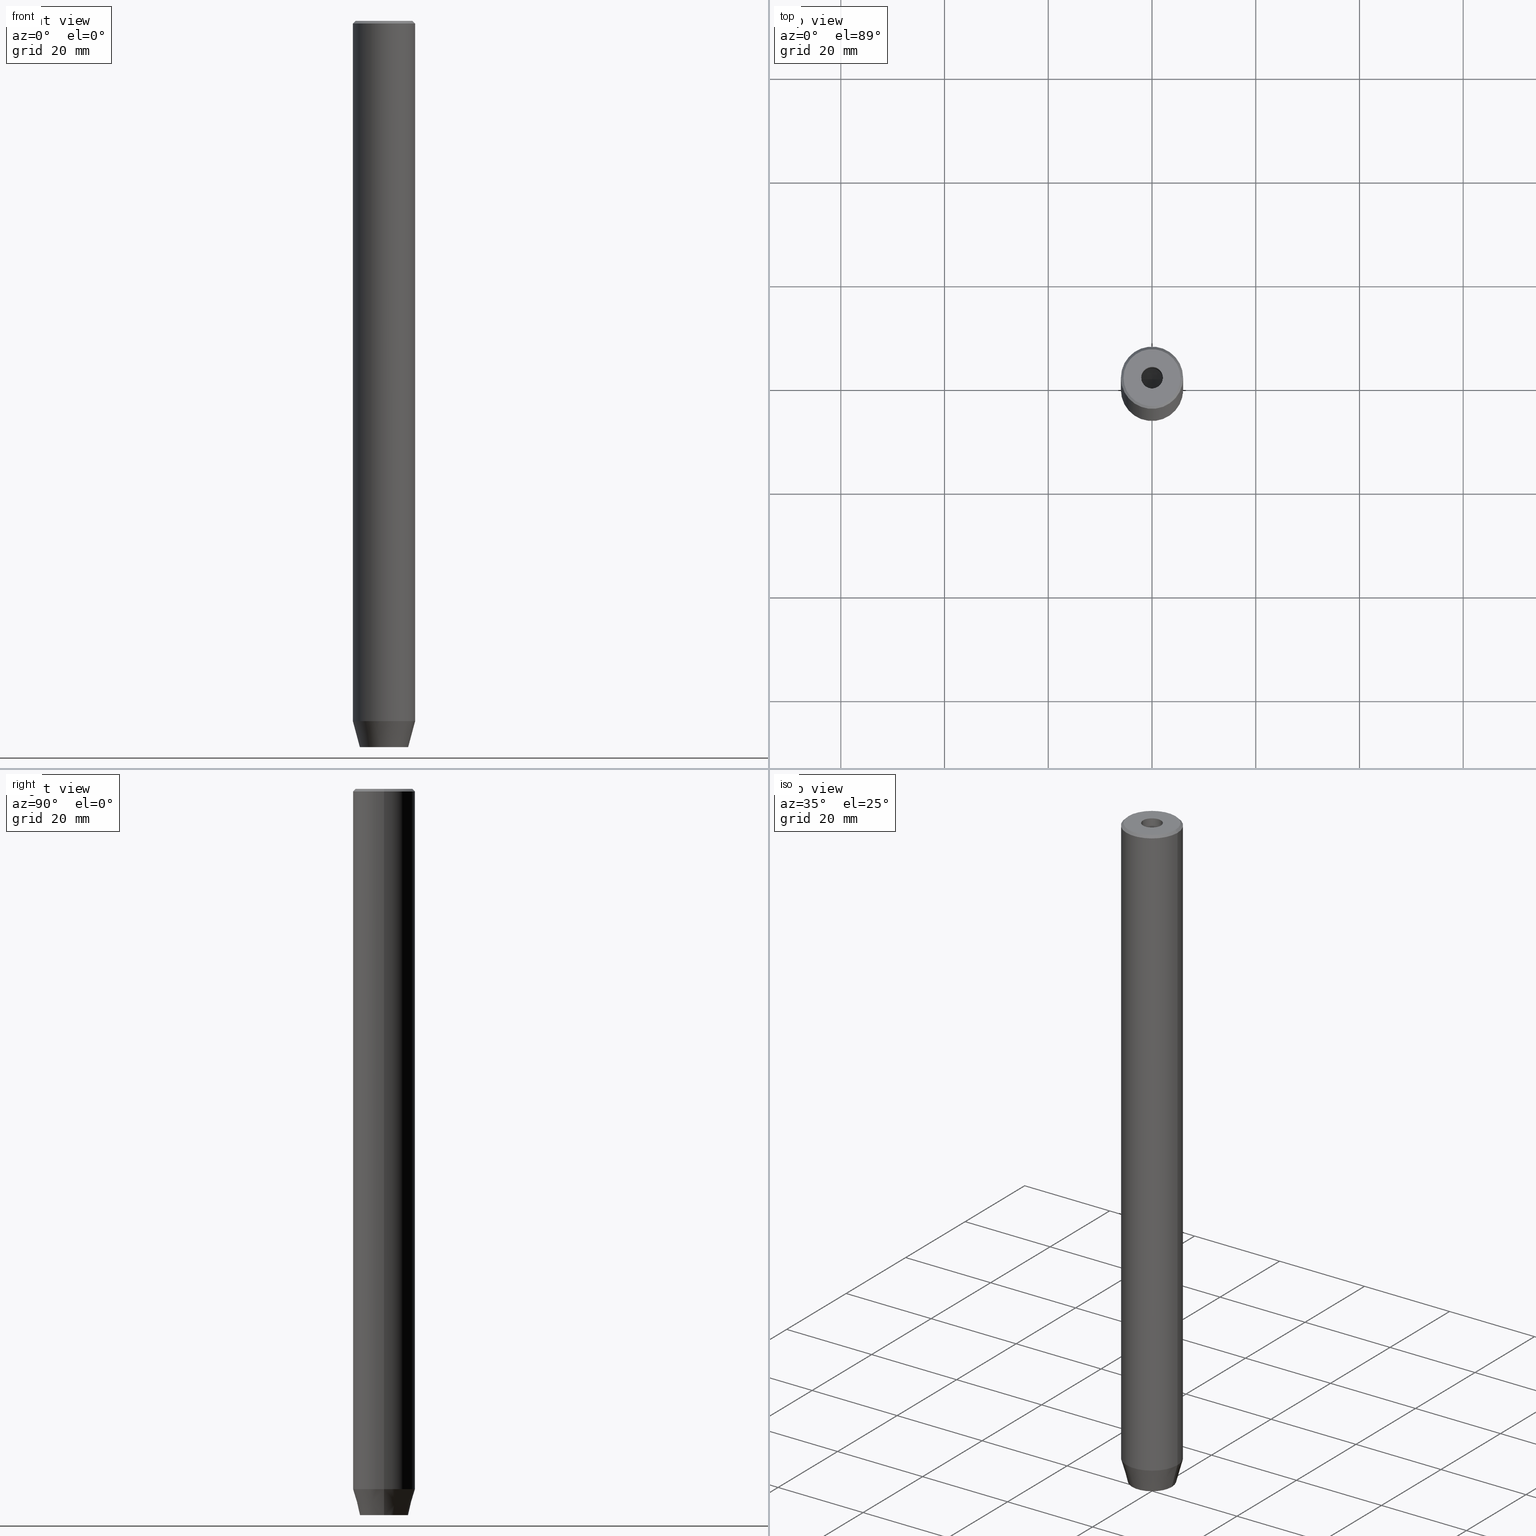
[diagram: canonical four-view strip — front | top / right | iso, engineering-drawing reading convention]
A machine part, canonical four-view strip (front | top / right | iso — engineering-drawing reading convention). The complete STEP part file that produces these views, byte-faithful:
ISO-10303-21;
HEADER;
FILE_DESCRIPTION (( 'STEP AP203' ),
    '1' );
FILE_NAME ('c65c.STEP',
    '2024-01-02T21:55:04',
    ( '' ),
    ( '' ),
    'SwSTEP 2.0',
    'SolidWorks 2019',
    '' );
FILE_SCHEMA (( 'CONFIG_CONTROL_DESIGN' ));
ENDSEC;

DATA;
#1 = DIRECTION ( 'NONE',  ( -0.000000000000000000, -0.000000000000000000, 1.000000000000000000 ) ) ;
#2 = VECTOR ( 'NONE', #266, 1000.000000000000000 ) ;
#3 = DIRECTION ( 'NONE',  ( -0.000000000000000000, -0.000000000000000000, 1.000000000000000000 ) ) ;
#4 = VERTEX_POINT ( 'NONE', #152 ) ;
#5 = ORIENTED_EDGE ( 'NONE', *, *, #225, .F. ) ;
#6 = EDGE_CURVE ( 'NONE', #142, #571, #326, .T. ) ;
#7 = EDGE_LOOP ( 'NONE', ( #56, #425, #221, #228 ) ) ;
#8 = CC_DESIGN_PERSON_AND_ORGANIZATION_ASSIGNMENT ( #287, #149, ( #255 ) ) ;
#9 = DIRECTION ( 'NONE',  ( -0.000000000000000000, -0.000000000000000000, 1.000000000000000000 ) ) ;
#10 = AXIS2_PLACEMENT_3D ( 'NONE', #316, #568, #126 ) ;
#11 = AXIS2_PLACEMENT_3D ( 'NONE', #208, #38, #574 ) ;
#12 = DATE_AND_TIME ( #244, #122 ) ;
#13 = CC_DESIGN_APPROVAL ( #361, ( #98 ) ) ;
#14 = EDGE_LOOP ( 'NONE', ( #508, #146, #550 ) ) ;
#15 = DIRECTION ( 'NONE',  ( 1.000000000000000000, 0.000000000000000000, 0.000000000000000000 ) ) ;
#16 = CYLINDRICAL_SURFACE ( 'NONE', #151, 2.099999999999997868 ) ;
#17 = ORIENTED_EDGE ( 'NONE', *, *, #97, .F. ) ;
#18 = CARTESIAN_POINT ( 'NONE',  ( -1.084202172485504434E-16, 2.886751345948129543, -137.2000000000000171 ) ) ;
#19 = CC_DESIGN_DATE_AND_TIME_ASSIGNMENT ( #107, #471, ( #255 ) ) ;
#20 = CARTESIAN_POINT ( 'NONE',  ( -2.500000000000000444, -1.443375672974064328, -140.0000000000000000 ) ) ;
#21 = CARTESIAN_POINT ( 'NONE',  ( 0.000000000000000000, 0.000000000000000000, -15.00000000000000000 ) ) ;
#22 = VECTOR ( 'NONE', #278, 1000.000000000000000 ) ;
#23 = AXIS2_PLACEMENT_3D ( 'NONE', #586, #501, #324 ) ;
#24 = CARTESIAN_POINT ( 'NONE',  ( -2.500000000000000444, 0.000000000000000000, -140.0000000000000000 ) ) ;
#25 = PRODUCT_DEFINITION_SHAPE ( 'NONE', 'NONE',  #98 ) ;
#26 = DIRECTION ( 'NONE',  ( 1.000000000000000000, 0.000000000000000000, 0.000000000000000000 ) ) ;
#27 = EDGE_CURVE ( 'NONE', #175, #99, #502, .T. ) ;
#28 = FACE_OUTER_BOUND ( 'NONE', #490, .T. ) ;
#29 = DIRECTION ( 'NONE',  ( -0.2588190451025214611, 3.169619151431774186E-17, 0.9659258262890679791 ) ) ;
#30 = VERTEX_POINT ( 'NONE', #381 ) ;
#31 = DIRECTION ( 'NONE',  ( 0.000000000000000000, 0.000000000000000000, 1.000000000000000000 ) ) ;
#32 = ORIENTED_EDGE ( 'NONE', *, *, #27, .F. ) ;
#33 = VECTOR ( 'NONE', #552, 1000.000000000000000 ) ;
#34 = PLANE ( 'NONE',  #347 ) ;
#35 = DIRECTION ( 'NONE',  ( -0.000000000000000000, -0.000000000000000000, 1.000000000000000000 ) ) ;
#36 = ORIENTED_EDGE ( 'NONE', *, *, #118, .T. ) ;
#37 =( NAMED_UNIT ( * ) SI_UNIT ( $, .STERADIAN. ) SOLID_ANGLE_UNIT ( ) );
#38 = DIRECTION ( 'NONE',  ( -0.000000000000000000, -0.000000000000000000, 1.000000000000000000 ) ) ;
#39 = VERTEX_POINT ( 'NONE', #280 ) ;
#40 = DATE_AND_TIME ( #368, #103 ) ;
#41 = DIRECTION ( 'NONE',  ( 1.000000000000000000, 0.000000000000000000, 0.000000000000000000 ) ) ;
#42 = ORIENTED_EDGE ( 'NONE', *, *, #240, .T. ) ;
#43 = VECTOR ( 'NONE', #433, 1000.000000000000000 ) ;
#44 = AXIS2_PLACEMENT_3D ( 'NONE', #320, #238, #232 ) ;
#45 = ORIENTED_EDGE ( 'NONE', *, *, #6, .F. ) ;
#46 = COORDINATED_UNIVERSAL_TIME_OFFSET ( 1, 0, .AHEAD. ) ;
#47 = DIRECTION ( 'NONE',  ( 1.000000000000000000, 0.000000000000000000, 0.000000000000000000 ) ) ;
#48 = APPROVAL ( #276, 'NEUR�EN�' ) ;
#49 = ORIENTED_EDGE ( 'NONE', *, *, #242, .F. ) ;
#50 = PERSON_AND_ORGANIZATION_ROLE ( 'design_owner' ) ;
#51 = DIRECTION ( 'NONE',  ( -0.8660254037844385966, -0.5000000000000001110, 0.000000000000000000 ) ) ;
#52 = VECTOR ( 'NONE', #145, 999.9999999999998863 ) ;
#53 = ORIENTED_EDGE ( 'NONE', *, *, #71, .T. ) ;
#54 = ADVANCED_FACE ( 'NONE', ( #236 ), #422, .F. ) ;
#55 = CARTESIAN_POINT ( 'NONE',  ( 0.000000000000000000, 0.000000000000000000, 0.000000000000000000 ) ) ;
#56 = ORIENTED_EDGE ( 'NONE', *, *, #530, .T. ) ;
#57 = ORIENTED_EDGE ( 'NONE', *, *, #468, .T. ) ;
#58 = FACE_OUTER_BOUND ( 'NONE', #104, .T. ) ;
#59 = COORDINATED_UNIVERSAL_TIME_OFFSET ( 1, 0, .AHEAD. ) ;
#60 = EDGE_LOOP ( 'NONE', ( #300, #155 ) ) ;
#61 = LINE ( 'NONE', #397, #43 ) ;
#62 = AXIS2_PLACEMENT_3D ( 'NONE', #212, #35, #359 ) ;
#63 = CARTESIAN_POINT ( 'NONE',  ( 0.000000000000000000, 0.000000000000000000, -0.4999999999999614197 ) ) ;
#64 = APPROVAL ( #339, 'NEUR�EN�' ) ;
#65 = DIRECTION ( 'NONE',  ( 1.000000000000000000, 0.000000000000000000, 0.000000000000000000 ) ) ;
#66 = CARTESIAN_POINT ( 'NONE',  ( 6.000000000000000000, 0.000000000000000000, -135.0000000000000000 ) ) ;
#67 = DIRECTION ( 'NONE',  ( 1.000000000000000000, 0.000000000000000000, 0.000000000000000000 ) ) ;
#68 = CARTESIAN_POINT ( 'NONE',  ( 0.000000000000000000, 0.000000000000000000, 0.000000000000000000 ) ) ;
#69 = FACE_OUTER_BOUND ( 'NONE', #427, .T. ) ;
#70 = EDGE_CURVE ( 'NONE', #317, #575, #498, .T. ) ;
#71 = EDGE_CURVE ( 'NONE', #415, #30, #354, .T. ) ;
#72 = AXIS2_PLACEMENT_3D ( 'NONE', #400, #172, #525 ) ;
#73 = CARTESIAN_POINT ( 'NONE',  ( 2.500000000000000000, 0.000000000000000000, -140.0000000000000000 ) ) ;
#74 = ORIENTED_EDGE ( 'NONE', *, *, #196, .F. ) ;
#75 = DIRECTION ( 'NONE',  ( 0.000000000000000000, -1.000000000000000000, 0.000000000000000000 ) ) ;
#76 = LINE ( 'NONE', #209, #577 ) ;
#77 = VERTEX_POINT ( 'NONE', #506 ) ;
#78 =( NAMED_UNIT ( * ) PLANE_ANGLE_UNIT ( ) SI_UNIT ( $, .RADIAN. ) );
#79 = ORIENTED_EDGE ( 'NONE', *, *, #332, .F. ) ;
#80 = AXIS2_PLACEMENT_3D ( 'NONE', #416, #3, #338 ) ;
#81 = VECTOR ( 'NONE', #218, 1000.000000000000000 ) ;
#82 = CARTESIAN_POINT ( 'NONE',  ( -1.249999999999999556, -2.165063509461096825, -137.2000000000000171 ) ) ;
#83 = CONICAL_SURFACE ( 'NONE', #248, 2.099999999999996980, 1.029744258676652535 ) ;
#84 = CARTESIAN_POINT ( 'NONE',  ( -6.000000000000000000, 7.347880794884119736E-16, -135.0000000000000000 ) ) ;
#85 = EDGE_LOOP ( 'NONE', ( #536, #355, #195, #184, #402, #319 ) ) ;
#86 = DATE_AND_TIME ( #375, #515 ) ;
#87 = LINE ( 'NONE', #356, #265 ) ;
#88 = EDGE_LOOP ( 'NONE', ( #194, #96, #437, #273 ) ) ;
#89 = ORIENTED_EDGE ( 'NONE', *, *, #352, .T. ) ;
#90 = PERSON ( 'NEUR�EN�', 'NEUR�EN�', 'NEUR�EN�', ('NEUR�EN�'), ('NEUR�EN�'), ('NEUR�EN�') ) ;
#91 = EDGE_CURVE ( 'NONE', #224, #175, #94, .T. ) ;
#92 = DIRECTION ( 'NONE',  ( -0.8660254037844387076, -0.5000000000000001110, 0.000000000000000000 ) ) ;
#93 = CIRCLE ( 'NONE', #23, 2.099999999999998757 ) ;
#94 = LINE ( 'NONE', #191, #22 ) ;
#95 = PLANE ( 'NONE',  #534 ) ;
#96 = ORIENTED_EDGE ( 'NONE', *, *, #120, .F. ) ;
#97 = EDGE_CURVE ( 'NONE', #4, #77, #472, .T. ) ;
#98 = PRODUCT_DEFINITION ( 'NEZN�M�', '', #216, #219 ) ;
#99 = VERTEX_POINT ( 'NONE', #389 ) ;
#100 = CONICAL_SURFACE ( 'NONE', #264, 6.000000000000000000, 0.2617993877991502405 ) ;
#101 = ORIENTED_EDGE ( 'NONE', *, *, #371, .F. ) ;
#102 = AXIS2_PLACEMENT_3D ( 'NONE', #68, #388, #431 ) ;
#103 = LOCAL_TIME ( 22, 55, 4.000000000000000000, #185 ) ;
#104 = EDGE_LOOP ( 'NONE', ( #370, #464, #89, #529 ) ) ;
#105 = DIRECTION ( 'NONE',  ( 1.000000000000000000, 0.000000000000000000, 0.000000000000000000 ) ) ;
#106 = DIRECTION ( 'NONE',  ( 0.000000000000000000, 1.000000000000000000, 0.000000000000000000 ) ) ;
#107 = DATE_AND_TIME ( #390, #434 ) ;
#108 = DIRECTION ( 'NONE',  ( 0.000000000000000000, 0.000000000000000000, -1.000000000000000000 ) ) ;
#109 = SHAPE_DEFINITION_REPRESENTATION ( #25, #405 ) ;
#110 = EDGE_LOOP ( 'NONE', ( #360, #404, #57, #367 ) ) ;
#111 = DIRECTION ( 'NONE',  ( 0.000000000000000000, -0.000000000000000000, 1.000000000000000000 ) ) ;
#112 = LINE ( 'NONE', #295, #383 ) ;
#113 = AXIS2_PLACEMENT_3D ( 'NONE', #479, #341, #423 ) ;
#114 = SECURITY_CLASSIFICATION_LEVEL ( 'unclassified' ) ;
#115 = APPROVAL_PERSON_ORGANIZATION ( #537, #48, #454 ) ;
#116 = FACE_BOUND ( 'NONE', #486, .T. ) ;
#117 = DIRECTION ( 'NONE',  ( -0.000000000000000000, -0.000000000000000000, -1.000000000000000000 ) ) ;
#118 = EDGE_CURVE ( 'NONE', #179, #292, #519, .T. ) ;
#119 = CARTESIAN_POINT ( 'NONE',  ( 0.000000000000000000, 0.000000000000000000, 0.000000000000000000 ) ) ;
#120 = EDGE_CURVE ( 'NONE', #406, #329, #512, .T. ) ;
#121 = CARTESIAN_POINT ( 'NONE',  ( 4.660254037844381081, 0.000000000000000000, -140.0000000000000000 ) ) ;
#122 = LOCAL_TIME ( 22, 55, 4.000000000000000000, #59 ) ;
#123 = DIRECTION ( 'NONE',  ( 1.000000000000000000, 0.000000000000000000, 0.000000000000000000 ) ) ;
#124 = VERTEX_POINT ( 'NONE', #154 ) ;
#125 = LINE ( 'NONE', #306, #473 ) ;
#126 = DIRECTION ( 'NONE',  ( 1.000000000000000000, 0.000000000000000000, 0.000000000000000000 ) ) ;
#127 = ORIENTED_EDGE ( 'NONE', *, *, #353, .T. ) ;
#128 = CARTESIAN_POINT ( 'NONE',  ( 1.250000000000000222, 2.165063509461096825, -137.2000000000000171 ) ) ;
#129 = ORIENTED_EDGE ( 'NONE', *, *, #378, .F. ) ;
#130 = DIRECTION ( 'NONE',  ( 0.5000000000000000000, -0.8660254037844387076, 0.000000000000000000 ) ) ;
#131 = AXIS2_PLACEMENT_3D ( 'NONE', #583, #1, #414 ) ;
#132 = ORIENTED_EDGE ( 'NONE', *, *, #118, .F. ) ;
#133 = APPLICATION_PROTOCOL_DEFINITION ( 'international standard', 'config_control_design', 1994, #274 ) ;
#134 = EDGE_CURVE ( 'NONE', #308, #406, #61, .T. ) ;
#135 = ORIENTED_EDGE ( 'NONE', *, *, #468, .F. ) ;
#136 = ADVANCED_FACE ( 'NONE', ( #58 ), #100, .T. ) ;
#137 = LINE ( 'NONE', #140, #294 ) ;
#138 = ORIENTED_EDGE ( 'NONE', *, *, #286, .F. ) ;
#139 = VECTOR ( 'NONE', #291, 1000.000000000000000 ) ;
#140 = CARTESIAN_POINT ( 'NONE',  ( -2.099999999999996980, 2.571758278209438013E-16, -15.00000000000000000 ) ) ;
#141 = CIRCLE ( 'NONE', #182, 2.099999999999998757 ) ;
#142 = VERTEX_POINT ( 'NONE', #387 ) ;
#143 = PERSON_AND_ORGANIZATION ( #90, #160 ) ;
#144 = DIRECTION ( 'NONE',  ( 0.000000000000000000, 0.000000000000000000, -1.000000000000000000 ) ) ;
#145 = DIRECTION ( 'NONE',  ( -0.7071067811865525687, 0.000000000000000000, -0.7071067811865425767 ) ) ;
#146 = ORIENTED_EDGE ( 'NONE', *, *, #517, .T. ) ;
#147 = FACE_OUTER_BOUND ( 'NONE', #14, .T. ) ;
#148 = EDGE_LOOP ( 'NONE', ( #138, #127, #443, #79 ) ) ;
#149 = PERSON_AND_ORGANIZATION_ROLE ( 'classification_officer' ) ;
#150 = DIRECTION ( 'NONE',  ( 0.8660254037844387076, -0.4999999999999998890, 0.000000000000000000 ) ) ;
#151 = AXIS2_PLACEMENT_3D ( 'NONE', #296, #164, #65 ) ;
#152 = CARTESIAN_POINT ( 'NONE',  ( 6.000000000000000000, 0.000000000000000000, -135.0000000000000000 ) ) ;
#153 = CONICAL_SURFACE ( 'NONE', #44, 2.099999999999996980, 1.029744258676652535 ) ;
#154 = CARTESIAN_POINT ( 'NONE',  ( 6.000000000000000000, 0.000000000000000000, -0.4999999999999614197 ) ) ;
#155 = ORIENTED_EDGE ( 'NONE', *, *, #548, .F. ) ;
#156 = LINE ( 'NONE', #343, #254 ) ;
#157 = CARTESIAN_POINT ( 'NONE',  ( -2.099999999999997868, 2.571758278209438999E-16, 0.000000000000000000 ) ) ;
#158 = DIRECTION ( 'NONE',  ( -0.000000000000000000, -0.000000000000000000, -1.000000000000000000 ) ) ;
#159 = AXIS2_PLACEMENT_3D ( 'NONE', #407, #531, #31 ) ;
#160 = ORGANIZATION ( 'NEUR�EN�', 'NEUR�EN�', '' ) ;
#161 = EDGE_CURVE ( 'NONE', #312, #142, #432, .T. ) ;
#162 = FACE_OUTER_BOUND ( 'NONE', #263, .T. ) ;
#163 = EDGE_CURVE ( 'NONE', #99, #543, #350, .T. ) ;
#164 = DIRECTION ( 'NONE',  ( -0.000000000000000000, -0.000000000000000000, 1.000000000000000000 ) ) ;
#165 = DIRECTION ( 'NONE',  ( -0.000000000000000000, -0.000000000000000000, 1.000000000000000000 ) ) ;
#166 = CARTESIAN_POINT ( 'NONE',  ( -2.500000000000000444, -1.443375672974064328, -137.2000000000000171 ) ) ;
#167 = CARTESIAN_POINT ( 'NONE',  ( 0.000000000000000000, 0.000000000000000000, -135.0000000000000000 ) ) ;
#168 = LINE ( 'NONE', #84, #252 ) ;
#169 = ORIENTED_EDGE ( 'NONE', *, *, #564, .F. ) ;
#170 = VECTOR ( 'NONE', #158, 1000.000000000000000 ) ;
#171 = AXIS2_PLACEMENT_3D ( 'NONE', #487, #130, #314 ) ;
#172 = DIRECTION ( 'NONE',  ( 1.000000000000000000, 0.000000000000000000, -0.000000000000000000 ) ) ;
#173 = ORIENTED_EDGE ( 'NONE', *, *, #161, .F. ) ;
#174 = FACE_OUTER_BOUND ( 'NONE', #584, .T. ) ;
#175 = VERTEX_POINT ( 'NONE', #559 ) ;
#176 = CARTESIAN_POINT ( 'NONE',  ( 2.500000000000000000, -1.443375672974064106, -140.0000000000000000 ) ) ;
#177 = LINE ( 'NONE', #271, #81 ) ;
#178 = CARTESIAN_POINT ( 'NONE',  ( -2.168404344971008868E-16, 2.886751345948129543, -140.0000000000000000 ) ) ;
#179 = VERTEX_POINT ( 'NONE', #290 ) ;
#180 = AXIS2_PLACEMENT_3D ( 'NONE', #119, #197, #243 ) ;
#181 = ADVANCED_FACE ( 'NONE', ( #465 ), #16, .F. ) ;
#182 = AXIS2_PLACEMENT_3D ( 'NONE', #351, #520, #123 ) ;
#183 = ADVANCED_FACE ( 'NONE', ( #207 ), #251, .T. ) ;
#184 = ORIENTED_EDGE ( 'NONE', *, *, #285, .T. ) ;
#185 = COORDINATED_UNIVERSAL_TIME_OFFSET ( 1, 0, .AHEAD. ) ;
#186 = DIRECTION ( 'NONE',  ( 1.000000000000000000, 0.000000000000000000, 0.000000000000000000 ) ) ;
#187 = VERTEX_POINT ( 'NONE', #561 ) ;
#188 = COORDINATED_UNIVERSAL_TIME_OFFSET ( 1, 0, .AHEAD. ) ;
#189 = CARTESIAN_POINT ( 'NONE',  ( 0.000000000000000000, 4.660254037844381081, -140.0000000000000000 ) ) ;
#190 = CC_DESIGN_APPROVAL ( #64, ( #255 ) ) ;
#191 = CARTESIAN_POINT ( 'NONE',  ( -2.500000000000000444, 0.000000000000000000, -137.2000000000000171 ) ) ;
#192 = DIRECTION ( 'NONE',  ( -0.000000000000000000, -0.000000000000000000, -1.000000000000000000 ) ) ;
#193 = VERTEX_POINT ( 'NONE', #201 ) ;
#194 = ORIENTED_EDGE ( 'NONE', *, *, #353, .F. ) ;
#195 = ORIENTED_EDGE ( 'NONE', *, *, #378, .T. ) ;
#196 = EDGE_CURVE ( 'NONE', #312, #124, #297, .T. ) ;
#197 = DIRECTION ( 'NONE',  ( -0.000000000000000000, -0.000000000000000000, 1.000000000000000000 ) ) ;
#198 = ORIENTED_EDGE ( 'NONE', *, *, #267, .F. ) ;
#199 = LINE ( 'NONE', #553, #170 ) ;
#200 = LINE ( 'NONE', #386, #33 ) ;
#201 = CARTESIAN_POINT ( 'NONE',  ( -2.099999999999998757, 2.571758278209439985E-16, -1.990051048614449116E-16 ) ) ;
#202 = ADVANCED_FACE ( 'NONE', ( #69 ), #299, .T. ) ;
#203 = PERSON_AND_ORGANIZATION_ROLE ( 'design_supplier' ) ;
#204 = CC_DESIGN_PERSON_AND_ORGANIZATION_ASSIGNMENT ( #327, #50, ( #560 ) ) ;
#205 = CARTESIAN_POINT ( 'NONE',  ( 2.500000000000000000, 1.443375672974064328, -140.0000000000000000 ) ) ;
#206 = DIRECTION ( 'NONE',  ( 1.000000000000000000, 0.000000000000000000, 0.000000000000000000 ) ) ;
#207 = FACE_OUTER_BOUND ( 'NONE', #85, .T. ) ;
#208 = CARTESIAN_POINT ( 'NONE',  ( 0.000000000000000000, 0.000000000000000000, -135.0000000000000000 ) ) ;
#209 = CARTESIAN_POINT ( 'NONE',  ( 1.249999999999999778, -2.165063509461096380, -137.2000000000000171 ) ) ;
#210 = ORIENTED_EDGE ( 'NONE', *, *, #311, .F. ) ;
#211 = DIRECTION ( 'NONE',  ( 1.000000000000000000, 0.000000000000000000, 0.000000000000000000 ) ) ;
#212 = CARTESIAN_POINT ( 'NONE',  ( 0.000000000000000000, 0.000000000000000000, 0.000000000000000000 ) ) ;
#213 = ORIENTED_EDGE ( 'NONE', *, *, #226, .T. ) ;
#214 = VECTOR ( 'NONE', #469, 1000.000000000000000 ) ;
#215 = VECTOR ( 'NONE', #441, 1000.000000000000114 ) ;
#216 = PRODUCT_DEFINITION_FORMATION_WITH_SPECIFIED_SOURCE ( 'LIBOVOLN�', '', #560, .NOT_KNOWN. ) ;
#217 = LINE ( 'NONE', #73, #461 ) ;
#218 = DIRECTION ( 'NONE',  ( -0.000000000000000000, -0.000000000000000000, 1.000000000000000000 ) ) ;
#219 = DESIGN_CONTEXT ( 'detailed design', #274, 'design' ) ;
#220 = CARTESIAN_POINT ( 'NONE',  ( 5.500000000000031974, 7.041719095097299615E-16, 0.000000000000000000 ) ) ;
#221 = ORIENTED_EDGE ( 'NONE', *, *, #285, .F. ) ;
#222 = DIRECTION ( 'NONE',  ( 0.000000000000000000, 0.000000000000000000, -1.000000000000000000 ) ) ;
#223 = LINE ( 'NONE', #580, #246 ) ;
#224 = VERTEX_POINT ( 'NONE', #166 ) ;
#225 = EDGE_CURVE ( 'NONE', #340, #179, #348, .T. ) ;
#226 = EDGE_CURVE ( 'NONE', #175, #179, #199, .T. ) ;
#227 = LINE ( 'NONE', #82, #215 ) ;
#228 = ORIENTED_EDGE ( 'NONE', *, *, #70, .T. ) ;
#229 = CC_DESIGN_PERSON_AND_ORGANIZATION_ASSIGNMENT ( #282, #344, ( #216 ) ) ;
#230 = ORIENTED_EDGE ( 'NONE', *, *, #269, .T. ) ;
#231 = CALENDAR_DATE ( 2024, 2, 1 ) ;
#232 = DIRECTION ( 'NONE',  ( 1.000000000000000000, 0.000000000000000000, 0.000000000000000000 ) ) ;
#233 = ORIENTED_EDGE ( 'NONE', *, *, #311, .T. ) ;
#234 = APPROVAL_ROLE ( '' ) ;
#235 = CARTESIAN_POINT ( 'NONE',  ( 2.500000000000000000, 1.443375672974064328, -137.2000000000000171 ) ) ;
#236 = FACE_OUTER_BOUND ( 'NONE', #533, .T. ) ;
#237 = ORIENTED_EDGE ( 'NONE', *, *, #267, .T. ) ;
#238 = DIRECTION ( 'NONE',  ( -0.000000000000000000, -0.000000000000000000, 1.000000000000000000 ) ) ;
#239 = DIRECTION ( 'NONE',  ( 0.8660254037844385966, 0.5000000000000001110, 0.000000000000000000 ) ) ;
#240 = EDGE_CURVE ( 'NONE', #543, #373, #156, .T. ) ;
#241 = ORIENTED_EDGE ( 'NONE', *, *, #480, .T. ) ;
#242 = EDGE_CURVE ( 'NONE', #292, #373, #112, .T. ) ;
#243 = DIRECTION ( 'NONE',  ( 1.000000000000000000, 0.000000000000000000, 0.000000000000000000 ) ) ;
#244 = CALENDAR_DATE ( 2024, 2, 1 ) ;
#245 = DIRECTION ( 'NONE',  ( -0.000000000000000000, -0.000000000000000000, 1.000000000000000000 ) ) ;
#246 = VECTOR ( 'NONE', #307, 1000.000000000000114 ) ;
#247 = CARTESIAN_POINT ( 'NONE',  ( 0.000000000000000000, 0.000000000000000000, 0.000000000000000000 ) ) ;
#248 = AXIS2_PLACEMENT_3D ( 'NONE', #545, #369, #462 ) ;
#249 = CYLINDRICAL_SURFACE ( 'NONE', #102, 6.000000000000000000 ) ;
#250 = DIRECTION ( 'NONE',  ( 0.8660254037844385966, -0.5000000000000001110, 0.000000000000000000 ) ) ;
#251 = PLANE ( 'NONE',  #113 ) ;
#252 = VECTOR ( 'NONE', #29, 1000.000000000000114 ) ;
#253 = DIRECTION ( 'NONE',  ( 0.8660254037844385966, 0.5000000000000001110, 0.000000000000000000 ) ) ;
#254 = VECTOR ( 'NONE', #510, 1000.000000000000000 ) ;
#255 = SECURITY_CLASSIFICATION ( '', '', #114 ) ;
#256 = CARTESIAN_POINT ( 'NONE',  ( 0.000000000000000000, 0.000000000000000000, 0.000000000000000000 ) ) ;
#257 = EDGE_LOOP ( 'NONE', ( #463, #260, #129, #42 ) ) ;
#258 = CC_DESIGN_PERSON_AND_ORGANIZATION_ASSIGNMENT ( #411, #270, ( #98 ) ) ;
#259 = CARTESIAN_POINT ( 'NONE',  ( 0.000000000000000000, 0.000000000000000000, 0.000000000000000000 ) ) ;
#260 = ORIENTED_EDGE ( 'NONE', *, *, #70, .F. ) ;
#261 = PLANE ( 'NONE',  #72 ) ;
#262 = CARTESIAN_POINT ( 'NONE',  ( -2.500000000000000444, -1.443375672974064328, -137.2000000000000171 ) ) ;
#263 = EDGE_LOOP ( 'NONE', ( #421, #241, #488, #458 ) ) ;
#264 = AXIS2_PLACEMENT_3D ( 'NONE', #476, #9, #67 ) ;
#265 = VECTOR ( 'NONE', #438, 1000.000000000000000 ) ;
#266 = DIRECTION ( 'NONE',  ( -0.000000000000000000, -0.000000000000000000, -1.000000000000000000 ) ) ;
#267 = EDGE_CURVE ( 'NONE', #99, #292, #518, .T. ) ;
#268 = ORIENTED_EDGE ( 'NONE', *, *, #161, .T. ) ;
#269 = EDGE_CURVE ( 'NONE', #30, #77, #168, .T. ) ;
#270 = PERSON_AND_ORGANIZATION_ROLE ( 'creator' ) ;
#271 = CARTESIAN_POINT ( 'NONE',  ( 6.000000000000000000, 0.000000000000000000, 0.000000000000000000 ) ) ;
#272 = APPLICATION_CONTEXT ( 'configuration controlled 3d designs of mechanical parts and assemblies' ) ;
#273 = ORIENTED_EDGE ( 'NONE', *, *, #564, .T. ) ;
#274 = APPLICATION_CONTEXT ( 'configuration controlled 3d designs of mechanical parts and assemblies' ) ;
#275 = VECTOR ( 'NONE', #426, 1000.000000000000000 ) ;
#276 = APPROVAL_STATUS ( 'not_yet_approved' ) ;
#277 = CONICAL_SURFACE ( 'NONE', #11, 6.000000000000000000, 0.2617993877991502405 ) ;
#278 = DIRECTION ( 'NONE',  ( 0.000000000000000000, 1.000000000000000000, 0.000000000000000000 ) ) ;
#279 = FACE_OUTER_BOUND ( 'NONE', #497, .T. ) ;
#280 = CARTESIAN_POINT ( 'NONE',  ( 2.099999999999998757, 0.000000000000000000, -1.990051048614449116E-16 ) ) ;
#281 = ORIENTED_EDGE ( 'NONE', *, *, #507, .T. ) ;
#282 = PERSON_AND_ORGANIZATION ( #90, #160 ) ;
#283 = AXIS2_PLACEMENT_3D ( 'NONE', #256, #435, #26 ) ;
#284 = ORIENTED_EDGE ( 'NONE', *, *, #352, .F. ) ;
#285 = EDGE_CURVE ( 'NONE', #317, #539, #76, .T. ) ;
#286 = EDGE_CURVE ( 'NONE', #329, #406, #335, .T. ) ;
#287 = PERSON_AND_ORGANIZATION ( #90, #160 ) ;
#288 = ORIENTED_EDGE ( 'NONE', *, *, #302, .T. ) ;
#289 = DIRECTION ( 'NONE',  ( 1.000000000000000000, 0.000000000000000000, 0.000000000000000000 ) ) ;
#290 = CARTESIAN_POINT ( 'NONE',  ( -2.500000000000000444, 1.443375672974064772, -140.0000000000000000 ) ) ;
#291 = DIRECTION ( 'NONE',  ( -0.000000000000000000, -0.000000000000000000, 1.000000000000000000 ) ) ;
#292 = VERTEX_POINT ( 'NONE', #178 ) ;
#293 = AXIS2_PLACEMENT_3D ( 'NONE', #516, #245, #15 ) ;
#294 = VECTOR ( 'NONE', #535, 1000.000000000000000 ) ;
#295 = CARTESIAN_POINT ( 'NONE',  ( 1.250000000000000222, 2.165063509461096825, -140.0000000000000000 ) ) ;
#296 = CARTESIAN_POINT ( 'NONE',  ( 0.000000000000000000, 0.000000000000000000, 0.000000000000000000 ) ) ;
#297 = LINE ( 'NONE', #482, #483 ) ;
#298 = DIRECTION ( 'NONE',  ( 0.5000000000000001110, 0.8660254037844385966, -0.000000000000000000 ) ) ;
#299 = CONICAL_SURFACE ( 'NONE', #579, 5.500000000000031974, 0.7853981633974552734 ) ;
#300 = ORIENTED_EDGE ( 'NONE', *, *, #71, .F. ) ;
#301 = LOCAL_TIME ( 22, 55, 4.000000000000000000, #46 ) ;
#302 = EDGE_CURVE ( 'NONE', #224, #340, #447, .T. ) ;
#303 = MECHANICAL_CONTEXT ( 'NONE', #272, 'mechanical' ) ;
#304 = FACE_OUTER_BOUND ( 'NONE', #257, .T. ) ;
#305 = ORIENTED_EDGE ( 'NONE', *, *, #417, .F. ) ;
#306 = CARTESIAN_POINT ( 'NONE',  ( 0.000000000000000000, -2.886751345948128211, -137.2000000000000171 ) ) ;
#307 = DIRECTION ( 'NONE',  ( -0.8660254037844387076, 0.4999999999999998890, 0.000000000000000000 ) ) ;
#308 = VERTEX_POINT ( 'NONE', #439 ) ;
#309 = ADVANCED_FACE ( 'NONE', ( #408 ), #523, .F. ) ;
#310 = FACE_OUTER_BOUND ( 'NONE', #399, .T. ) ;
#311 = EDGE_CURVE ( 'NONE', #187, #340, #223, .T. ) ;
#312 = VERTEX_POINT ( 'NONE', #220 ) ;
#313 = CLOSED_SHELL ( 'NONE', ( #181, #547, #202, #450, #532, #572, #395, #396, #136, #412, #54, #449, #331, #478, #495, #429, #183, #513, #309 ) ) ;
#314 = DIRECTION ( 'NONE',  ( 0.8660254037844385966, 0.4999999999999999445, 0.000000000000000000 ) ) ;
#315 = UNCERTAINTY_MEASURE_WITH_UNIT (LENGTH_MEASURE( 1.000000000000000082E-05 ), #489, 'distance_accuracy_value', 'NONE');
#316 = CARTESIAN_POINT ( 'NONE',  ( 0.000000000000000000, 0.000000000000000000, -15.00000000000000000 ) ) ;
#317 = VERTEX_POINT ( 'NONE', #403 ) ;
#318 = APPROVAL_DATE_TIME ( #86, #361 ) ;
#319 = ORIENTED_EDGE ( 'NONE', *, *, #91, .T. ) ;
#320 = CARTESIAN_POINT ( 'NONE',  ( 0.000000000000000000, 0.000000000000000000, -15.00000000000000000 ) ) ;
#321 = ORIENTED_EDGE ( 'NONE', *, *, #226, .F. ) ;
#322 = AXIS2_PLACEMENT_3D ( 'NONE', #167, #165, #41 ) ;
#323 = CC_DESIGN_SECURITY_CLASSIFICATION ( #255, ( #216 ) ) ;
#324 = DIRECTION ( 'NONE',  ( 1.000000000000000000, 0.000000000000000000, 0.000000000000000000 ) ) ;
#325 = MANIFOLD_SOLID_BREP ( 'Vrt�k z�vitn�ku pro M5 z�vit1', #313 ) ;
#326 = LINE ( 'NONE', #546, #52 ) ;
#327 = PERSON_AND_ORGANIZATION ( #90, #160 ) ;
#328 = DIRECTION ( 'NONE',  ( -0.000000000000000000, -0.000000000000000000, 1.000000000000000000 ) ) ;
#329 = VERTEX_POINT ( 'NONE', #570 ) ;
#330 = APPROVAL_STATUS ( 'not_yet_approved' ) ;
#331 = ADVANCED_FACE ( 'NONE', ( #174 ), #363, .F. ) ;
#332 = EDGE_CURVE ( 'NONE', #406, #39, #475, .T. ) ;
#333 = CARTESIAN_POINT ( 'NONE',  ( 2.500000000000000000, -1.443375672974064106, -137.2000000000000171 ) ) ;
#334 = PERSON_AND_ORGANIZATION ( #90, #160 ) ;
#335 = CIRCLE ( 'NONE', #10, 2.099999999999996980 ) ;
#336 = ORIENTED_EDGE ( 'NONE', *, *, #371, .T. ) ;
#337 = LINE ( 'NONE', #66, #418 ) ;
#338 = DIRECTION ( 'NONE',  ( 1.000000000000000000, 0.000000000000000000, 0.000000000000000000 ) ) ;
#339 = APPROVAL_STATUS ( 'not_yet_approved' ) ;
#340 = VERTEX_POINT ( 'NONE', #20 ) ;
#341 = DIRECTION ( 'NONE',  ( 0.000000000000000000, 0.000000000000000000, -1.000000000000000000 ) ) ;
#342 = APPROVAL_DATE_TIME ( #12, #64 ) ;
#343 = CARTESIAN_POINT ( 'NONE',  ( 2.500000000000000000, 1.443375672974064328, -137.2000000000000171 ) ) ;
#344 = PERSON_AND_ORGANIZATION_ROLE ( 'creator' ) ;
#345 = PRODUCT_RELATED_PRODUCT_CATEGORY ( 'detail', '', ( #560 ) ) ;
#346 = PLANE ( 'NONE',  #514 ) ;
#347 = AXIS2_PLACEMENT_3D ( 'NONE', #128, #298, #566 ) ;
#348 = LINE ( 'NONE', #24, #424 ) ;
#349 = DIRECTION ( 'NONE',  ( 0.2588190451025214611, 0.000000000000000000, 0.9659258262890679791 ) ) ;
#350 = LINE ( 'NONE', #385, #275 ) ;
#351 = CARTESIAN_POINT ( 'NONE',  ( 0.000000000000000000, 0.000000000000000000, -1.990051048614449116E-16 ) ) ;
#352 = EDGE_CURVE ( 'NONE', #415, #4, #337, .T. ) ;
#353 = EDGE_CURVE ( 'NONE', #329, #193, #505, .T. ) ;
#354 = CIRCLE ( 'NONE', #80, 4.660254037844381081 ) ;
#355 = ORIENTED_EDGE ( 'NONE', *, *, #163, .T. ) ;
#356 = CARTESIAN_POINT ( 'NONE',  ( -6.000000000000000000, 7.347880794884119736E-16, 0.000000000000000000 ) ) ;
#357 = EDGE_LOOP ( 'NONE', ( #74, #101, #569, #364 ) ) ;
#358 = FACE_OUTER_BOUND ( 'NONE', #357, .T. ) ;
#359 = DIRECTION ( 'NONE',  ( 1.000000000000000000, 0.000000000000000000, 0.000000000000000000 ) ) ;
#360 = ORIENTED_EDGE ( 'NONE', *, *, #97, .T. ) ;
#361 = APPROVAL ( #330, 'NEUR�EN�' ) ;
#362 = DIRECTION ( 'NONE',  ( 0.000000000000000000, 0.000000000000000000, -1.000000000000000000 ) ) ;
#363 = PLANE ( 'NONE',  #401 ) ;
#364 = ORIENTED_EDGE ( 'NONE', *, *, #380, .F. ) ;
#365 = AXIS2_PLACEMENT_3D ( 'NONE', #21, #393, #206 ) ;
#366 = AXIS2_PLACEMENT_3D ( 'NONE', #63, #391, #105 ) ;
#367 = ORIENTED_EDGE ( 'NONE', *, *, #430, .F. ) ;
#368 = CALENDAR_DATE ( 2024, 2, 1 ) ;
#369 = DIRECTION ( 'NONE',  ( -0.000000000000000000, -0.000000000000000000, 1.000000000000000000 ) ) ;
#370 = ORIENTED_EDGE ( 'NONE', *, *, #269, .F. ) ;
#371 = EDGE_CURVE ( 'NONE', #142, #312, #541, .T. ) ;
#372 = CARTESIAN_POINT ( 'NONE',  ( -6.000000000000000000, 7.347880794884119736E-16, -0.4999999999999614197 ) ) ;
#373 = VERTEX_POINT ( 'NONE', #205 ) ;
#374 = AXIS2_PLACEMENT_3D ( 'NONE', #503, #456, #186 ) ;
#375 = CALENDAR_DATE ( 2024, 2, 1 ) ;
#376 = FACE_BOUND ( 'NONE', #542, .T. ) ;
#377 = CARTESIAN_POINT ( 'NONE',  ( -1.250000000000000444, 2.165063509461097269, -137.2000000000000171 ) ) ;
#378 = EDGE_CURVE ( 'NONE', #543, #317, #200, .T. ) ;
#379 = CYLINDRICAL_SURFACE ( 'NONE', #474, 6.000000000000000000 ) ;
#380 = EDGE_CURVE ( 'NONE', #124, #571, #452, .T. ) ;
#381 = CARTESIAN_POINT ( 'NONE',  ( -4.660254037844381081, 6.527522992771884330E-16, -140.0000000000000000 ) ) ;
#382 = CARTESIAN_POINT ( 'NONE',  ( -1.250000000000000444, 2.165063509461097269, -137.2000000000000171 ) ) ;
#383 = VECTOR ( 'NONE', #250, 1000.000000000000000 ) ;
#384 = VECTOR ( 'NONE', #92, 999.9999999999998863 ) ;
#385 = CARTESIAN_POINT ( 'NONE',  ( 1.250000000000000222, 2.165063509461096825, -137.2000000000000171 ) ) ;
#386 = CARTESIAN_POINT ( 'NONE',  ( 2.500000000000000000, 0.000000000000000000, -137.2000000000000171 ) ) ;
#387 = CARTESIAN_POINT ( 'NONE',  ( -5.500000000000031974, 0.000000000000000000, 0.000000000000000000 ) ) ;
#388 = DIRECTION ( 'NONE',  ( -0.000000000000000000, -0.000000000000000000, 1.000000000000000000 ) ) ;
#389 = CARTESIAN_POINT ( 'NONE',  ( -1.084202172485504434E-16, 2.886751345948129543, -137.2000000000000171 ) ) ;
#390 = CALENDAR_DATE ( 2024, 2, 1 ) ;
#391 = DIRECTION ( 'NONE',  ( 0.000000000000000000, 0.000000000000000000, -1.000000000000000000 ) ) ;
#392 = VECTOR ( 'NONE', #504, 1000.000000000000000 ) ;
#393 = DIRECTION ( 'NONE',  ( -0.000000000000000000, -0.000000000000000000, 1.000000000000000000 ) ) ;
#394 =( GEOMETRIC_REPRESENTATION_CONTEXT ( 3 ) GLOBAL_UNCERTAINTY_ASSIGNED_CONTEXT ( ( #315 ) ) GLOBAL_UNIT_ASSIGNED_CONTEXT ( ( #489, #78, #37 ) ) REPRESENTATION_CONTEXT ( 'NONE', 'WORKASPACE' ) );
#395 = ADVANCED_FACE ( 'NONE', ( #116, #481 ), #346, .T. ) ;
#396 = ADVANCED_FACE ( 'NONE', ( #162 ), #249, .T. ) ;
#397 = CARTESIAN_POINT ( 'NONE',  ( 2.099999999999996980, 0.000000000000000000, -15.00000000000000000 ) ) ;
#398 = FACE_OUTER_BOUND ( 'NONE', #7, .T. ) ;
#399 = EDGE_LOOP ( 'NONE', ( #445, #321, #448, #288 ) ) ;
#400 = CARTESIAN_POINT ( 'NONE',  ( 2.500000000000000000, 0.000000000000000000, -137.2000000000000171 ) ) ;
#401 = AXIS2_PLACEMENT_3D ( 'NONE', #555, #509, #150 ) ;
#402 = ORIENTED_EDGE ( 'NONE', *, *, #417, .T. ) ;
#403 = CARTESIAN_POINT ( 'NONE',  ( 2.500000000000000000, -1.443375672974064106, -137.2000000000000171 ) ) ;
#404 = ORIENTED_EDGE ( 'NONE', *, *, #419, .T. ) ;
#405 = ADVANCED_BREP_SHAPE_REPRESENTATION ( 'c65c', ( #325, #283 ), #394 ) ;
#406 = VERTEX_POINT ( 'NONE', #436 ) ;
#407 = CARTESIAN_POINT ( 'NONE',  ( -2.500000000000000444, 0.000000000000000000, -137.2000000000000171 ) ) ;
#408 = FACE_OUTER_BOUND ( 'NONE', #88, .T. ) ;
#409 = ORIENTED_EDGE ( 'NONE', *, *, #573, .F. ) ;
#410 = AXIS2_PLACEMENT_3D ( 'NONE', #446, #222, #211 ) ;
#411 = PERSON_AND_ORGANIZATION ( #90, #160 ) ;
#412 = ADVANCED_FACE ( 'NONE', ( #358 ), #420, .T. ) ;
#413 = ORIENTED_EDGE ( 'NONE', *, *, #240, .F. ) ;
#414 = DIRECTION ( 'NONE',  ( 1.000000000000000000, 0.000000000000000000, 0.000000000000000000 ) ) ;
#415 = VERTEX_POINT ( 'NONE', #121 ) ;
#416 = CARTESIAN_POINT ( 'NONE',  ( 0.000000000000000000, 0.000000000000000000, -140.0000000000000000 ) ) ;
#417 = EDGE_CURVE ( 'NONE', #539, #224, #227, .T. ) ;
#418 = VECTOR ( 'NONE', #349, 1000.000000000000114 ) ;
#419 = EDGE_CURVE ( 'NONE', #77, #571, #87, .T. ) ;
#420 = CONICAL_SURFACE ( 'NONE', #522, 5.500000000000031974, 0.7853981633974552734 ) ;
#421 = ORIENTED_EDGE ( 'NONE', *, *, #419, .F. ) ;
#422 = PLANE ( 'NONE',  #459 ) ;
#423 = DIRECTION ( 'NONE',  ( -1.000000000000000000, 0.000000000000000000, -0.000000000000000000 ) ) ;
#424 = VECTOR ( 'NONE', #106, 1000.000000000000000 ) ;
#425 = ORIENTED_EDGE ( 'NONE', *, *, #507, .F. ) ;
#426 = DIRECTION ( 'NONE',  ( 0.8660254037844385966, -0.5000000000000001110, 0.000000000000000000 ) ) ;
#427 = EDGE_LOOP ( 'NONE', ( #173, #581, #135, #45 ) ) ;
#428 = CARTESIAN_POINT ( 'NONE',  ( 2.099999999999997868, 0.000000000000000000, 0.000000000000000000 ) ) ;
#429 = ADVANCED_FACE ( 'NONE', ( #28 ), #34, .F. ) ;
#430 = EDGE_CURVE ( 'NONE', #4, #124, #177, .T. ) ;
#431 = DIRECTION ( 'NONE',  ( 1.000000000000000000, 0.000000000000000000, 0.000000000000000000 ) ) ;
#432 = CIRCLE ( 'NONE', #180, 5.500000000000031974 ) ;
#433 = DIRECTION ( 'NONE',  ( 0.8571673007021113344, 0.000000000000000000, 0.5150380749100558209 ) ) ;
#434 = LOCAL_TIME ( 22, 55, 4.000000000000000000, #511 ) ;
#435 = DIRECTION ( 'NONE',  ( 0.000000000000000000, 0.000000000000000000, 1.000000000000000000 ) ) ;
#436 = CARTESIAN_POINT ( 'NONE',  ( 2.099999999999996980, 0.000000000000000000, -15.00000000000000000 ) ) ;
#437 = ORIENTED_EDGE ( 'NONE', *, *, #332, .T. ) ;
#438 = DIRECTION ( 'NONE',  ( -0.000000000000000000, -0.000000000000000000, 1.000000000000000000 ) ) ;
#439 = CARTESIAN_POINT ( 'NONE',  ( -3.982994051648894933E-15, 0.000000000000000000, -16.26180729995787644 ) ) ;
#440 = EDGE_LOOP ( 'NONE', ( #336, #268 ) ) ;
#441 = DIRECTION ( 'NONE',  ( -0.8660254037844387076, 0.4999999999999998890, 0.000000000000000000 ) ) ;
#442 = VECTOR ( 'NONE', #117, 1000.000000000000000 ) ;
#443 = ORIENTED_EDGE ( 'NONE', *, *, #493, .T. ) ;
#444 = DIRECTION ( 'NONE',  ( -1.000000000000000000, 0.000000000000000000, -0.000000000000000000 ) ) ;
#445 = ORIENTED_EDGE ( 'NONE', *, *, #225, .T. ) ;
#446 = CARTESIAN_POINT ( 'NONE',  ( 0.000000000000000000, 0.000000000000000000, -0.4999999999999614197 ) ) ;
#447 = LINE ( 'NONE', #262, #2 ) ;
#448 = ORIENTED_EDGE ( 'NONE', *, *, #91, .F. ) ;
#449 = ADVANCED_FACE ( 'NONE', ( #310 ), #485, .F. ) ;
#450 = ADVANCED_FACE ( 'NONE', ( #491 ), #277, .T. ) ;
#451 = ORIENTED_EDGE ( 'NONE', *, *, #134, .T. ) ;
#452 = CIRCLE ( 'NONE', #366, 6.000000000000000000 ) ;
#453 = APPROVAL_PERSON_ORGANIZATION ( #334, #64, #466 ) ;
#454 = APPROVAL_ROLE ( '' ) ;
#455 = LINE ( 'NONE', #578, #384 ) ;
#456 = DIRECTION ( 'NONE',  ( -0.000000000000000000, -0.000000000000000000, 1.000000000000000000 ) ) ;
#457 = DIRECTION ( 'NONE',  ( -0.5000000000000001110, 0.8660254037844385966, 0.000000000000000000 ) ) ;
#458 = ORIENTED_EDGE ( 'NONE', *, *, #380, .T. ) ;
#459 = AXIS2_PLACEMENT_3D ( 'NONE', #382, #457, #51 ) ;
#460 = PERSON_AND_ORGANIZATION ( #90, #160 ) ;
#461 = VECTOR ( 'NONE', #75, 1000.000000000000000 ) ;
#462 = DIRECTION ( 'NONE',  ( 1.000000000000000000, 0.000000000000000000, 0.000000000000000000 ) ) ;
#463 = ORIENTED_EDGE ( 'NONE', *, *, #573, .T. ) ;
#464 = ORIENTED_EDGE ( 'NONE', *, *, #548, .T. ) ;
#465 = FACE_OUTER_BOUND ( 'NONE', #148, .T. ) ;
#466 = APPROVAL_ROLE ( '' ) ;
#467 = ORIENTED_EDGE ( 'NONE', *, *, #242, .T. ) ;
#468 = EDGE_CURVE ( 'NONE', #571, #124, #484, .T. ) ;
#469 = DIRECTION ( 'NONE',  ( -0.000000000000000000, -0.000000000000000000, 1.000000000000000000 ) ) ;
#470 = DIRECTION ( 'NONE',  ( -1.000000000000000000, 0.000000000000000000, 0.000000000000000000 ) ) ;
#471 = DATE_TIME_ROLE ( 'classification_date' ) ;
#472 = CIRCLE ( 'NONE', #374, 6.000000000000000000 ) ;
#473 = VECTOR ( 'NONE', #192, 1000.000000000000000 ) ;
#474 = AXIS2_PLACEMENT_3D ( 'NONE', #55, #328, #47 ) ;
#475 = LINE ( 'NONE', #428, #139 ) ;
#476 = CARTESIAN_POINT ( 'NONE',  ( 0.000000000000000000, 0.000000000000000000, -135.0000000000000000 ) ) ;
#477 = DATE_AND_TIME ( #231, #301 ) ;
#478 = ADVANCED_FACE ( 'NONE', ( #398 ), #563, .F. ) ;
#479 = CARTESIAN_POINT ( 'NONE',  ( 0.000000000000000000, 0.000000000000000000, -137.2000000000000171 ) ) ;
#480 = EDGE_CURVE ( 'NONE', #77, #4, #499, .T. ) ;
#481 = FACE_OUTER_BOUND ( 'NONE', #440, .T. ) ;
#482 = CARTESIAN_POINT ( 'NONE',  ( 5.500000000000031974, 6.735557395310481466E-16, 0.000000000000000000 ) ) ;
#483 = VECTOR ( 'NONE', #551, 999.9999999999998863 ) ;
#484 = CIRCLE ( 'NONE', #410, 6.000000000000000000 ) ;
#485 = PLANE ( 'NONE',  #159 ) ;
#486 = EDGE_LOOP ( 'NONE', ( #169, #524 ) ) ;
#487 = CARTESIAN_POINT ( 'NONE',  ( 1.249999999999999778, -2.165063509461096380, -137.2000000000000171 ) ) ;
#488 = ORIENTED_EDGE ( 'NONE', *, *, #430, .T. ) ;
#489 =( LENGTH_UNIT ( ) NAMED_UNIT ( * ) SI_UNIT ( .MILLI., .METRE. ) );
#490 = EDGE_LOOP ( 'NONE', ( #467, #413, #565, #237 ) ) ;
#491 = FACE_OUTER_BOUND ( 'NONE', #494, .T. ) ;
#492 = ORIENTED_EDGE ( 'NONE', *, *, #120, .T. ) ;
#493 = EDGE_CURVE ( 'NONE', #193, #39, #141, .T. ) ;
#494 = EDGE_LOOP ( 'NONE', ( #53, #230, #17, #284 ) ) ;
#495 = ADVANCED_FACE ( 'NONE', ( #304 ), #261, .F. ) ;
#496 = FACE_OUTER_BOUND ( 'NONE', #110, .T. ) ;
#497 = EDGE_LOOP ( 'NONE', ( #544, #451, #492 ) ) ;
#498 = LINE ( 'NONE', #333, #392 ) ;
#499 = CIRCLE ( 'NONE', #322, 6.000000000000000000 ) ;
#500 = CIRCLE ( 'NONE', #131, 4.660254037844381081 ) ;
#501 = DIRECTION ( 'NONE',  ( -0.000000000000000000, -0.000000000000000000, 1.000000000000000000 ) ) ;
#502 = LINE ( 'NONE', #377, #521 ) ;
#503 = CARTESIAN_POINT ( 'NONE',  ( 0.000000000000000000, 0.000000000000000000, -135.0000000000000000 ) ) ;
#504 = DIRECTION ( 'NONE',  ( -0.000000000000000000, -0.000000000000000000, -1.000000000000000000 ) ) ;
#505 = LINE ( 'NONE', #157, #214 ) ;
#506 = CARTESIAN_POINT ( 'NONE',  ( -6.000000000000000000, 7.347880794884119736E-16, -135.0000000000000000 ) ) ;
#507 = EDGE_CURVE ( 'NONE', #539, #187, #125, .T. ) ;
#508 = ORIENTED_EDGE ( 'NONE', *, *, #134, .F. ) ;
#509 = DIRECTION ( 'NONE',  ( -0.4999999999999998890, -0.8660254037844387076, 0.000000000000000000 ) ) ;
#510 = DIRECTION ( 'NONE',  ( -0.000000000000000000, -0.000000000000000000, -1.000000000000000000 ) ) ;
#511 = COORDINATED_UNIVERSAL_TIME_OFFSET ( 1, 0, .AHEAD. ) ;
#512 = CIRCLE ( 'NONE', #365, 2.099999999999996980 ) ;
#513 = ADVANCED_FACE ( 'NONE', ( #279 ), #83, .F. ) ;
#514 = AXIS2_PLACEMENT_3D ( 'NONE', #558, #111, #289 ) ;
#515 = LOCAL_TIME ( 22, 55, 4.000000000000000000, #188 ) ;
#516 = CARTESIAN_POINT ( 'NONE',  ( 0.000000000000000000, 0.000000000000000000, 0.000000000000000000 ) ) ;
#517 = EDGE_CURVE ( 'NONE', #308, #329, #137, .T. ) ;
#518 = LINE ( 'NONE', #18, #442 ) ;
#519 = LINE ( 'NONE', #556, #549 ) ;
#520 = DIRECTION ( 'NONE',  ( -0.000000000000000000, -0.000000000000000000, 1.000000000000000000 ) ) ;
#521 = VECTOR ( 'NONE', #239, 1000.000000000000000 ) ;
#522 = AXIS2_PLACEMENT_3D ( 'NONE', #259, #362, #528 ) ;
#523 = CYLINDRICAL_SURFACE ( 'NONE', #62, 2.099999999999997868 ) ;
#524 = ORIENTED_EDGE ( 'NONE', *, *, #493, .F. ) ;
#525 = DIRECTION ( 'NONE',  ( -0.000000000000000000, 0.000000000000000000, -1.000000000000000000 ) ) ;
#526 = DIRECTION ( 'NONE',  ( -0.8660254037844387076, -0.5000000000000001110, 0.000000000000000000 ) ) ;
#527 = ORIENTED_EDGE ( 'NONE', *, *, #530, .F. ) ;
#528 = DIRECTION ( 'NONE',  ( -1.000000000000000000, 0.000000000000000000, 0.000000000000000000 ) ) ;
#529 = ORIENTED_EDGE ( 'NONE', *, *, #480, .F. ) ;
#530 = EDGE_CURVE ( 'NONE', #575, #187, #455, .T. ) ;
#531 = DIRECTION ( 'NONE',  ( -1.000000000000000000, 0.000000000000000000, 0.000000000000000000 ) ) ;
#532 = ADVANCED_FACE ( 'NONE', ( #496 ), #379, .T. ) ;
#533 = EDGE_LOOP ( 'NONE', ( #36, #198, #32, #213 ) ) ;
#534 = AXIS2_PLACEMENT_3D ( 'NONE', #189, #144, #444 ) ;
#535 = DIRECTION ( 'NONE',  ( -0.8571673007021113344, 1.049727191138617463E-16, 0.5150380749100558209 ) ) ;
#536 = ORIENTED_EDGE ( 'NONE', *, *, #27, .T. ) ;
#537 = PERSON_AND_ORGANIZATION ( #90, #160 ) ;
#538 = CARTESIAN_POINT ( 'NONE',  ( 0.000000000000000000, -2.886751345948128211, -137.2000000000000171 ) ) ;
#539 = VERTEX_POINT ( 'NONE', #538 ) ;
#540 = FACE_OUTER_BOUND ( 'NONE', #60, .T. ) ;
#541 = CIRCLE ( 'NONE', #293, 5.500000000000031974 ) ;
#542 = EDGE_LOOP ( 'NONE', ( #132, #5, #210, #527, #409, #49 ) ) ;
#543 = VERTEX_POINT ( 'NONE', #235 ) ;
#544 = ORIENTED_EDGE ( 'NONE', *, *, #517, .F. ) ;
#545 = CARTESIAN_POINT ( 'NONE',  ( 0.000000000000000000, 0.000000000000000000, -15.00000000000000000 ) ) ;
#546 = CARTESIAN_POINT ( 'NONE',  ( -5.500000000000031974, 0.000000000000000000, 0.000000000000000000 ) ) ;
#547 = ADVANCED_FACE ( 'NONE', ( #147 ), #153, .F. ) ;
#548 = EDGE_CURVE ( 'NONE', #30, #415, #500, .T. ) ;
#549 = VECTOR ( 'NONE', #253, 1000.000000000000000 ) ;
#550 = ORIENTED_EDGE ( 'NONE', *, *, #286, .T. ) ;
#551 = DIRECTION ( 'NONE',  ( 0.7071067811865525687, 8.659560562354994488E-17, -0.7071067811865425767 ) ) ;
#552 = DIRECTION ( 'NONE',  ( 0.000000000000000000, -1.000000000000000000, 0.000000000000000000 ) ) ;
#553 = CARTESIAN_POINT ( 'NONE',  ( -2.500000000000000444, 1.443375672974064772, -137.2000000000000171 ) ) ;
#554 = APPROVAL_DATE_TIME ( #477, #48 ) ;
#555 = CARTESIAN_POINT ( 'NONE',  ( -1.249999999999999556, -2.165063509461096825, -137.2000000000000171 ) ) ;
#556 = CARTESIAN_POINT ( 'NONE',  ( -1.250000000000000444, 2.165063509461097269, -140.0000000000000000 ) ) ;
#557 = CC_DESIGN_PERSON_AND_ORGANIZATION_ASSIGNMENT ( #460, #203, ( #216 ) ) ;
#558 = CARTESIAN_POINT ( 'NONE',  ( 0.000000000000000000, 0.000000000000000000, 0.000000000000000000 ) ) ;
#559 = CARTESIAN_POINT ( 'NONE',  ( -2.500000000000000444, 1.443375672974064772, -137.2000000000000171 ) ) ;
#560 = PRODUCT ( 'c65c', 'c65c', '', ( #303 ) ) ;
#561 = CARTESIAN_POINT ( 'NONE',  ( 0.000000000000000000, -2.886751345948128211, -140.0000000000000000 ) ) ;
#562 = APPLICATION_PROTOCOL_DEFINITION ( 'international standard', 'config_control_design', 1994, #272 ) ;
#563 = PLANE ( 'NONE',  #171 ) ;
#564 = EDGE_CURVE ( 'NONE', #39, #193, #93, .T. ) ;
#565 = ORIENTED_EDGE ( 'NONE', *, *, #163, .F. ) ;
#566 = DIRECTION ( 'NONE',  ( -0.8660254037844385966, 0.5000000000000001110, 0.000000000000000000 ) ) ;
#567 = APPROVAL_PERSON_ORGANIZATION ( #143, #361, #234 ) ;
#568 = DIRECTION ( 'NONE',  ( -0.000000000000000000, -0.000000000000000000, 1.000000000000000000 ) ) ;
#569 = ORIENTED_EDGE ( 'NONE', *, *, #6, .T. ) ;
#570 = CARTESIAN_POINT ( 'NONE',  ( -2.099999999999996980, 2.571758278209438013E-16, -15.00000000000000000 ) ) ;
#571 = VERTEX_POINT ( 'NONE', #372 ) ;
#572 = ADVANCED_FACE ( 'NONE', ( #376, #540 ), #95, .T. ) ;
#573 = EDGE_CURVE ( 'NONE', #373, #575, #217, .T. ) ;
#574 = DIRECTION ( 'NONE',  ( 1.000000000000000000, 0.000000000000000000, 0.000000000000000000 ) ) ;
#575 = VERTEX_POINT ( 'NONE', #176 ) ;
#576 = CC_DESIGN_DATE_AND_TIME_ASSIGNMENT ( #40, #585, ( #98 ) ) ;
#577 = VECTOR ( 'NONE', #526, 999.9999999999998863 ) ;
#578 = CARTESIAN_POINT ( 'NONE',  ( 1.249999999999999778, -2.165063509461096380, -140.0000000000000000 ) ) ;
#579 = AXIS2_PLACEMENT_3D ( 'NONE', #247, #108, #470 ) ;
#580 = CARTESIAN_POINT ( 'NONE',  ( -1.249999999999999556, -2.165063509461096825, -140.0000000000000000 ) ) ;
#581 = ORIENTED_EDGE ( 'NONE', *, *, #196, .T. ) ;
#582 = CC_DESIGN_APPROVAL ( #48, ( #216 ) ) ;
#583 = CARTESIAN_POINT ( 'NONE',  ( 0.000000000000000000, 0.000000000000000000, -140.0000000000000000 ) ) ;
#584 = EDGE_LOOP ( 'NONE', ( #233, #587, #305, #281 ) ) ;
#585 = DATE_TIME_ROLE ( 'creation_date' ) ;
#586 = CARTESIAN_POINT ( 'NONE',  ( 0.000000000000000000, 0.000000000000000000, -1.990051048614449116E-16 ) ) ;
#587 = ORIENTED_EDGE ( 'NONE', *, *, #302, .F. ) ;
ENDSEC;
END-ISO-10303-21;
